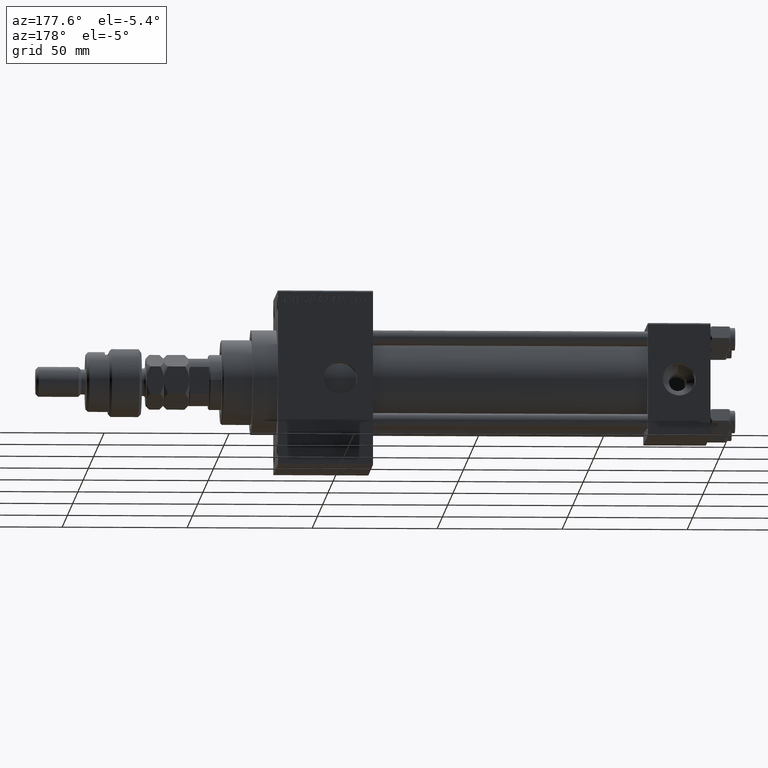
[diagram: clean part render]
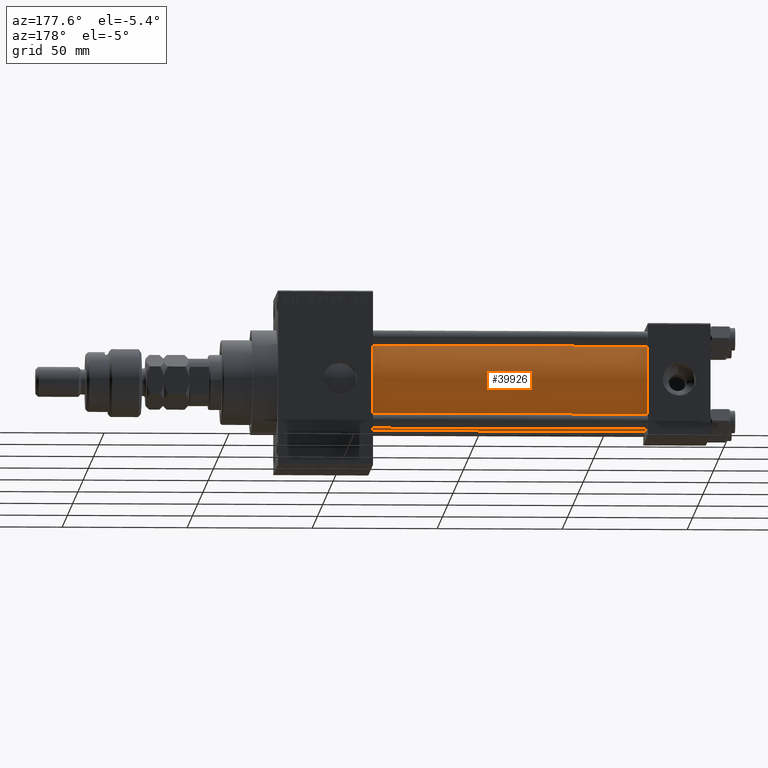
[diagram: same view with one face highlighted and labeled with its STEP entity id]
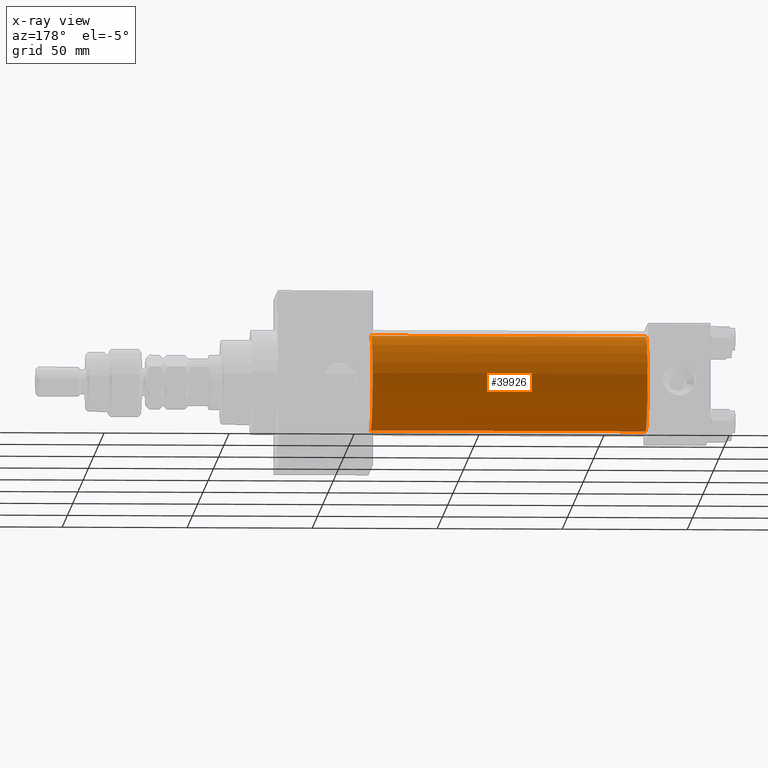
[diagram: x-ray of the same camera — body ghosted, the highlighted face saturated]
A machine part, auxiliary view. The second image highlights one B-rep face of the part: STEP entity #39926.
The next image is the same camera in x-ray: the body ghosted, the highlighted face saturated — about 0% of this face is hidden behind the body in this view.
In plain terms, the highlighted cylindrical surface (partial cylindrical patch) has radius 19 mm, axis along (-1, -0, -0).
Its self-contained STEP definition (entity closure, byte-faithful):
#2006 = EDGE_LOOP ( 'NONE', ( #15777, #24942, #49552, #24102 ) ) ;
#4866 = VERTEX_POINT ( 'NONE', #30776 ) ;
#6394 = AXIS2_PLACEMENT_3D ( 'NONE', #20249, #24211, #8156 ) ;
#7049 = VERTEX_POINT ( 'NONE', #43439 ) ;
#7572 = FACE_OUTER_BOUND ( 'NONE', #2006, .T. ) ;
#8156 = DIRECTION ( 'NONE',  ( 0.000000000000000000, 0.000000000000000000, 1.000000000000000000 ) ) ;
#8340 = DIRECTION ( 'NONE',  ( -1.000000000000000000, -0.000000000000000000, -0.000000000000000000 ) ) ;
#8673 = CIRCLE ( 'NONE', #26334, 19.00000000000000000 ) ;
#8758 = CARTESIAN_POINT ( 'NONE',  ( 135.0000000000000000, -2.602085213965210642E-15, 19.00000000000000000 ) ) ;
#11671 = DIRECTION ( 'NONE',  ( 1.000000000000000000, 0.000000000000000000, 0.000000000000000000 ) ) ;
#14577 = EDGE_CURVE ( 'NONE', #7049, #49214, #37141, .T. ) ;
#15230 = VERTEX_POINT ( 'NONE', #44319 ) ;
#15777 = ORIENTED_EDGE ( 'NONE', *, *, #22325, .F. ) ;
#16485 = DIRECTION ( 'NONE',  ( 0.000000000000000000, 0.000000000000000000, 1.000000000000000000 ) ) ;
#18159 = CIRCLE ( 'NONE', #6394, 19.00000000000000000 ) ;
#18876 = VECTOR ( 'NONE', #29341, 1000.000000000000000 ) ;
#20249 = CARTESIAN_POINT ( 'NONE',  ( 24.99999999999999289, -2.602085213965210642E-15, 0.000000000000000000 ) ) ;
#21693 = CARTESIAN_POINT ( 'NONE',  ( 135.0000000000000000, -2.752562955852396712E-16, -19.00000000000000000 ) ) ;
#21928 = VECTOR ( 'NONE', #49488, 1000.000000000000000 ) ;
#22325 = EDGE_CURVE ( 'NONE', #15230, #7049, #8673, .T. ) ;
#23622 = CYLINDRICAL_SURFACE ( 'NONE', #43513, 19.00000000000000000 ) ;
#24102 = ORIENTED_EDGE ( 'NONE', *, *, #14577, .F. ) ;
#24211 = DIRECTION ( 'NONE',  ( 1.000000000000000000, -0.000000000000000000, 0.000000000000000000 ) ) ;
#24872 = LINE ( 'NONE', #21693, #18876 ) ;
#24942 = ORIENTED_EDGE ( 'NONE', *, *, #28702, .T. ) ;
#26334 = AXIS2_PLACEMENT_3D ( 'NONE', #47683, #11671, #43727 ) ;
#28702 = EDGE_CURVE ( 'NONE', #15230, #4866, #24872, .T. ) ;
#29341 = DIRECTION ( 'NONE',  ( -1.000000000000000000, -0.000000000000000000, -0.000000000000000000 ) ) ;
#30776 = CARTESIAN_POINT ( 'NONE',  ( 24.99999999999999289, -2.752562955852396712E-16, -19.00000000000000000 ) ) ;
#34877 = EDGE_CURVE ( 'NONE', #4866, #49214, #18159, .T. ) ;
#36591 = CARTESIAN_POINT ( 'NONE',  ( 24.99999999999999289, -2.602085213965210642E-15, 19.00000000000000000 ) ) ;
#37141 = LINE ( 'NONE', #8758, #21928 ) ;
#39926 = ADVANCED_FACE ( 'NONE', ( #7572 ), #23622, .T. ) ;
#40136 = CARTESIAN_POINT ( 'NONE',  ( 135.0000000000000000, -2.602085213965210642E-15, 0.000000000000000000 ) ) ;
#43439 = CARTESIAN_POINT ( 'NONE',  ( 135.0000000000000000, -2.602085213965210642E-15, 19.00000000000000000 ) ) ;
#43513 = AXIS2_PLACEMENT_3D ( 'NONE', #40136, #8340, #16485 ) ;
#43727 = DIRECTION ( 'NONE',  ( 0.000000000000000000, 0.000000000000000000, -1.000000000000000000 ) ) ;
#44319 = CARTESIAN_POINT ( 'NONE',  ( 135.0000000000000000, -2.752562955852396712E-16, -19.00000000000000000 ) ) ;
#47683 = CARTESIAN_POINT ( 'NONE',  ( 135.0000000000000000, -2.602085213965210642E-15, 0.000000000000000000 ) ) ;
#49214 = VERTEX_POINT ( 'NONE', #36591 ) ;
#49488 = DIRECTION ( 'NONE',  ( -1.000000000000000000, -0.000000000000000000, -0.000000000000000000 ) ) ;
#49552 = ORIENTED_EDGE ( 'NONE', *, *, #34877, .T. ) ;